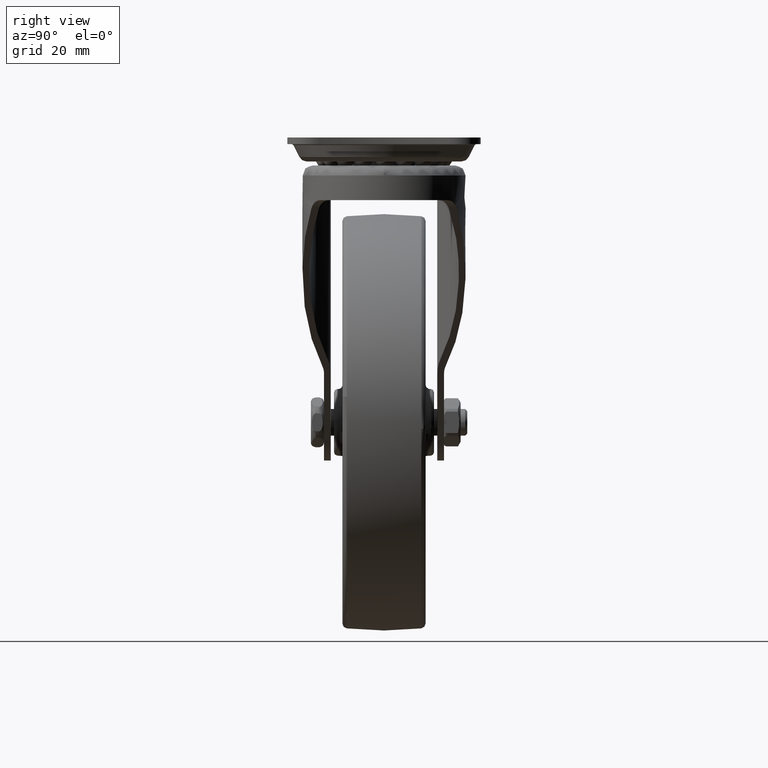
[diagram: clean part render]
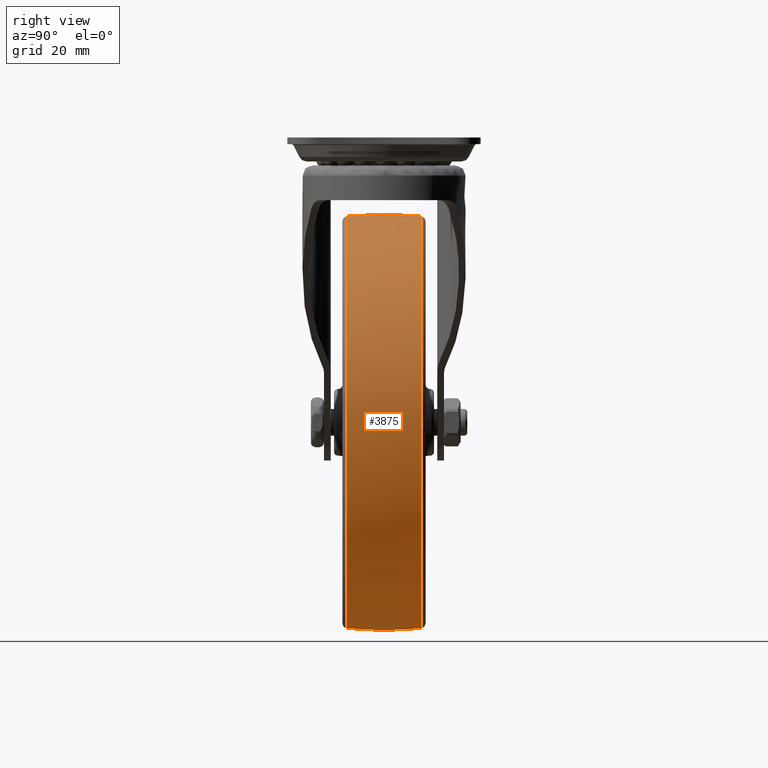
[diagram: same view with one face highlighted and labeled with its STEP entity id]
A machine part, right view. The second image highlights one B-rep face of the part: STEP entity #3875.
In plain terms, the highlighted face is a freeform B-spline surface patch.
Its self-contained STEP definition (entity closure, byte-faithful):
#2860=CARTESIAN_POINT('',(22.845244011217819,11.167496227775541,-85.401788313178116));
#2861=VERTEX_POINT('',#2860);
#2875=CARTESIAN_POINT('',(-39.0,11.167479376598530,-145.374480649571890));
#2876=VERTEX_POINT('',#2875);
#2877=CARTESIAN_POINT('',(22.845244011217826,11.167496227775539,-85.401788313178116));
#2878=CARTESIAN_POINT('',(21.001039585263349,11.167479729732420,-145.374480662721420));
#2879=CARTESIAN_POINT('',(-39.0,11.167479376598530,-145.374480649571890));
#2887=(BOUNDED_CURVE()B_SPLINE_CURVE(2,(#2877,#2878,#2879),.UNSPECIFIED.,.F.,.U.)B_SPLINE_CURVE_WITH_KNOTS((3,3),(0.255400342949292,0.500000000000000),.UNSPECIFIED.)CURVE()GEOMETRIC_REPRESENTATION_ITEM()RATIONAL_B_SPLINE_CURVE((0.987619548603187,0.713433676503007,1.0))REPRESENTATION_ITEM(''));
#2888=EDGE_CURVE('',#2861,#2876,#2887,.T.);
#2890=CARTESIAN_POINT('',(-100.460647095803400,11.167501089711850,-90.644222299101187));
#2891=VERTEX_POINT('',#2890);
#2905=CARTESIAN_POINT('',(-100.635247150040800,11.167502255783029,-78.064253065922173));
#2906=VERTEX_POINT('',#2905);
#2907=CARTESIAN_POINT('',(-100.460647095803410,11.167501089711847,-90.644222299101187));
#2908=CARTESIAN_POINT('',(-100.874478167351710,11.167501388904286,-87.084096863302136));
#2909=CARTESIAN_POINT('',(-100.874478129847900,11.167501724889570,-83.500000142278608));
#2910=CARTESIAN_POINT('',(-100.874478101353200,11.167501980165680,-80.776862246566225));
#2911=CARTESIAN_POINT('',(-100.635247150040750,11.167502255783031,-78.064253065922173));
#2919=(BOUNDED_CURVE()B_SPLINE_CURVE(2,(#2907,#2908,#2909,#2910,#2911),.UNSPECIFIED.,.F.,.U.)B_SPLINE_CURVE_WITH_KNOTS((3,2,3),(0.730000183416617,0.750000000000000,0.765281545798919),.UNSPECIFIED.)CURVE()GEOMETRIC_REPRESENTATION_ITEM()RATIONAL_B_SPLINE_CURVE((0.956886479199343,0.976568757380857,1.0,0.982096555450038,0.966381849362865))REPRESENTATION_ITEM(''));
#2920=EDGE_CURVE('',#2891,#2906,#2919,.T.);
#3009=CARTESIAN_POINT('',(-39.0,11.167512690355260,-21.625523094152800));
#3010=VERTEX_POINT('',#3009);
#3011=CARTESIAN_POINT('',(-100.635247150040750,11.167502255783024,-78.064253065922173));
#3012=CARTESIAN_POINT('',(-95.657791549611005,11.167507960688637,-21.625523155520952));
#3013=CARTESIAN_POINT('',(-39.0,11.167512690355260,-21.625523094152800));
#3021=(BOUNDED_CURVE()B_SPLINE_CURVE(2,(#3011,#3012,#3013),.UNSPECIFIED.,.F.,.U.)B_SPLINE_CURVE_WITH_KNOTS((3,3),(0.765281545798919,1.0),.UNSPECIFIED.)CURVE()GEOMETRIC_REPRESENTATION_ITEM()RATIONAL_B_SPLINE_CURVE((0.966381849362864,0.725010225736510,1.0))REPRESENTATION_ITEM(''));
#3022=EDGE_CURVE('',#2906,#3010,#3021,.T.);
#3024=CARTESIAN_POINT('',(-39.0,11.167512690355260,-21.625523094152800));
#3025=CARTESIAN_POINT('',(22.874477320516988,11.167513032796952,-21.625523106904289));
#3026=CARTESIAN_POINT('',(22.874477748134218,11.167496729052500,-83.500001897763440));
#3027=CARTESIAN_POINT('',(22.874477754707428,11.167496478435709,-84.451119792162103));
#3028=CARTESIAN_POINT('',(22.845244011217826,11.167496227775539,-85.401788313178116));
#3036=(BOUNDED_CURVE()B_SPLINE_CURVE(2,(#3024,#3025,#3026,#3027,#3028),.UNSPECIFIED.,.F.,.U.)B_SPLINE_CURVE_WITH_KNOTS((3,2,3),(0.0,0.250000000000000,0.255400342949292),.UNSPECIFIED.)CURVE()GEOMETRIC_REPRESENTATION_ITEM()RATIONAL_B_SPLINE_CURVE((1.0,0.707106781186548,1.0,0.993673104683541,0.987619548603187))REPRESENTATION_ITEM(''));
#3037=EDGE_CURVE('',#3010,#2861,#3036,.T.);
#3078=CARTESIAN_POINT('',(-17.089903320957180,-11.167497128498550,-141.365350299477710));
#3079=VERTEX_POINT('',#3078);
#3080=CARTESIAN_POINT('',(-39.0,-11.167496600321741,-145.374478714011590));
#3081=VERTEX_POINT('',#3080);
#3082=CARTESIAN_POINT('',(-17.089903320957180,-11.167497128498553,-141.365350299477710));
#3083=CARTESIAN_POINT('',(-27.678154781166203,-11.167496600321741,-145.374478714011590));
#3084=CARTESIAN_POINT('',(-39.0,-11.167496600321741,-145.374478714011590));
#3092=(BOUNDED_CURVE()B_SPLINE_CURVE(2,(#3082,#3083,#3084),.UNSPECIFIED.,.F.,.U.)B_SPLINE_CURVE_WITH_KNOTS((3,3),(0.439864364802635,0.500000000000000),.UNSPECIFIED.)CURVE()GEOMETRIC_REPRESENTATION_ITEM()RATIONAL_B_SPLINE_CURVE((0.892987463424499,0.929546720966609,1.0))REPRESENTATION_ITEM(''));
#3093=EDGE_CURVE('',#3079,#3081,#3092,.T.);
#3157=CARTESIAN_POINT('',(22.386578507134889,-11.167505699743669,-75.745071649993506));
#3158=VERTEX_POINT('',#3157);
#3172=CARTESIAN_POINT('',(-39.0,-11.167512690355361,-21.625523094152800));
#3173=VERTEX_POINT('',#3172);
#3174=CARTESIAN_POINT('',(-39.0,-11.167512690355361,-21.625523094152800));
#3175=CARTESIAN_POINT('',(15.549688461256952,-11.167512690355361,-21.625523094152811));
#3176=CARTESIAN_POINT('',(22.386578507134892,-11.167505699743666,-75.745071649993506));
#3184=(BOUNDED_CURVE()B_SPLINE_CURVE(2,(#3174,#3175,#3176),.UNSPECIFIED.,.F.,.U.)B_SPLINE_CURVE_WITH_KNOTS((3,3),(0.0,0.228321254115601),.UNSPECIFIED.)CURVE()GEOMETRIC_REPRESENTATION_ITEM()RATIONAL_B_SPLINE_CURVE((1.0,0.732505011834229,0.953608353009632))REPRESENTATION_ITEM(''));
#3185=EDGE_CURVE('',#3173,#3158,#3184,.T.);
#3187=CARTESIAN_POINT('',(-100.460645261107300,-11.167517428462061,-90.644222180527947));
#3188=VERTEX_POINT('',#3187);
#3189=CARTESIAN_POINT('',(-100.460645261107270,-11.167517428462068,-90.644222180527947));
#3190=CARTESIAN_POINT('',(-100.874476390554560,-11.167517306261448,-87.084096703953776));
#3191=CARTESIAN_POINT('',(-100.874476405873910,-11.167517169033360,-83.499999941882805));
#3192=CARTESIAN_POINT('',(-100.874476670341110,-11.167514799980008,-21.625523066777436));
#3193=CARTESIAN_POINT('',(-39.0,-11.167512690355361,-21.625523094152800));
#3201=(BOUNDED_CURVE()B_SPLINE_CURVE(2,(#3189,#3190,#3191,#3192,#3193),.UNSPECIFIED.,.F.,.U.)B_SPLINE_CURVE_WITH_KNOTS((3,2,3),(0.730000183159472,0.750000000000000,1.0),.UNSPECIFIED.)CURVE()GEOMETRIC_REPRESENTATION_ITEM()RATIONAL_B_SPLINE_CURVE((0.956886478693219,0.976568757079593,1.0,0.707106781186548,1.0))REPRESENTATION_ITEM(''));
#3202=EDGE_CURVE('',#3188,#3173,#3201,.T.);
#3237=CARTESIAN_POINT('',(22.386578507134896,-11.167505699743669,-75.745071649993506));
#3238=CARTESIAN_POINT('',(22.874476905847203,-11.167505151488170,-79.607188285257237));
#3239=CARTESIAN_POINT('',(22.874476905847200,-11.167504645338550,-83.500000904082199));
#3240=CARTESIAN_POINT('',(22.874476905847203,-11.167499089092557,-126.233263952785830));
#3241=CARTESIAN_POINT('',(-17.089903320957184,-11.167497128498551,-141.365350299477740));
#3249=(BOUNDED_CURVE()B_SPLINE_CURVE(2,(#3237,#3238,#3239,#3240,#3241),.UNSPECIFIED.,.F.,.U.)B_SPLINE_CURVE_WITH_KNOTS((3,2,3),(0.228321254115601,0.250000000000000,0.439864364802635),.UNSPECIFIED.)CURVE()GEOMETRIC_REPRESENTATION_ITEM()RATIONAL_B_SPLINE_CURVE((0.953608353009632,0.974601769352318,1.0,0.777560060219939,0.892987463424499))REPRESENTATION_ITEM(''));
#3250=EDGE_CURVE('',#3158,#3079,#3249,.T.);
#3782=CARTESIAN_POINT('',(-100.328220371281900,12.295962269001576,-90.628894801781371));
#3783=CARTESIAN_POINT('',(-101.081977602067750,6.171396417675259,-90.716512801648705));
#3784=CARTESIAN_POINT('',(-101.081977602067770,-8.449784E-015,-90.716512801648705));
#3785=CARTESIAN_POINT('',(-101.081977602067750,-6.171396417675268,-90.716512801648705));
#3786=CARTESIAN_POINT('',(-100.328220371281920,-12.295962269001574,-90.628894801781357));
#3787=CARTESIAN_POINT('',(-100.741167425012140,12.295962269001571,-87.076407548566166));
#3788=CARTESIAN_POINT('',(-101.499999999999990,6.171396417675259,-87.120363545228855));
#3789=CARTESIAN_POINT('',(-101.500000000000010,-8.449784E-015,-87.120363545228841));
#3790=CARTESIAN_POINT('',(-101.499999999999990,-6.171396417675267,-87.120363545228841));
#3791=CARTESIAN_POINT('',(-100.741167425012140,-12.295962269001581,-87.076407548566138));
#3792=CARTESIAN_POINT('',(-100.741167425012120,12.295962269001569,-83.500000000000000));
#3793=CARTESIAN_POINT('',(-101.500000000000000,6.171396417675260,-83.500000000000000));
#3794=CARTESIAN_POINT('',(-101.500000000000000,-8.449784E-015,-83.500000000000000));
#3795=CARTESIAN_POINT('',(-101.500000000000000,-6.171396417675268,-83.500000000000000));
#3796=CARTESIAN_POINT('',(-100.741167425012120,-12.295962269001569,-83.500000000000000));
#3797=CARTESIAN_POINT('',(-100.741167425012150,12.295962269001572,-21.758832574987853));
#3798=CARTESIAN_POINT('',(-101.500000000000030,6.171396417675259,-20.999999999999986));
#3799=CARTESIAN_POINT('',(-101.500000000000010,-8.449784E-015,-20.999999999999986));
#3800=CARTESIAN_POINT('',(-101.500000000000030,-6.171396417675268,-20.999999999999986));
#3801=CARTESIAN_POINT('',(-100.741167425012150,-12.295962269001574,-21.758832574987853));
#3802=CARTESIAN_POINT('',(-39.0,12.295962269001569,-21.758832574987856));
#3803=CARTESIAN_POINT('',(-39.0,6.171396417675260,-20.999999999999989));
#3804=CARTESIAN_POINT('',(-39.0,-8.449784E-015,-20.999999999999989));
#3805=CARTESIAN_POINT('',(-39.0,-6.171396417675268,-20.999999999999989));
#3806=CARTESIAN_POINT('',(-39.0,-12.295962269001569,-21.758832574987856));
#3807=CARTESIAN_POINT('',(22.741167425012137,12.295962269001572,-21.758832574987853));
#3808=CARTESIAN_POINT('',(23.500000000000011,6.171396417675259,-20.999999999999986));
#3809=CARTESIAN_POINT('',(23.500000000000004,-8.449784E-015,-20.999999999999986));
#3810=CARTESIAN_POINT('',(23.500000000000011,-6.171396417675268,-20.999999999999986));
#3811=CARTESIAN_POINT('',(22.741167425012154,-12.295962269001574,-21.758832574987853));
#3812=CARTESIAN_POINT('',(22.741167425012151,12.295962269001569,-83.500000000000000));
#3813=CARTESIAN_POINT('',(23.500000000000018,6.171396417675260,-83.500000000000000));
#3814=CARTESIAN_POINT('',(23.500000000000011,-8.449784E-015,-83.500000000000000));
#3815=CARTESIAN_POINT('',(23.500000000000018,-6.171396417675268,-83.500000000000000));
#3816=CARTESIAN_POINT('',(22.741167425012158,-12.295962269001569,-83.500000000000000));
#3817=CARTESIAN_POINT('',(22.741167425012137,12.295962269001572,-145.241167425012120));
#3818=CARTESIAN_POINT('',(23.500000000000011,6.171396417675259,-146.000000000000030));
#3819=CARTESIAN_POINT('',(23.500000000000004,-8.449784E-015,-146.000000000000090));
#3820=CARTESIAN_POINT('',(23.500000000000011,-6.171396417675268,-146.000000000000030));
#3821=CARTESIAN_POINT('',(22.741167425012154,-12.295962269001574,-145.241167425012150));
#3822=CARTESIAN_POINT('',(-39.0,12.295962269001569,-145.241167425012150));
#3823=CARTESIAN_POINT('',(-39.0,6.171396417675260,-146.0));
#3824=CARTESIAN_POINT('',(-39.0,-8.449784E-015,-146.0));
#3825=CARTESIAN_POINT('',(-39.0,-6.171396417675268,-146.0));
#3826=CARTESIAN_POINT('',(-39.0,-12.295962269001569,-145.241167425012150));
#3834=(BOUNDED_SURFACE()B_SPLINE_SURFACE(2,2,((#3782,#3787,#3792,#3797,#3802,#3807,#3812,#3817,#3822),(#3783,#3788,#3793,#3798,#3803,#3808,#3813,#3818,#3823),(#3784,#3789,#3794,#3799,#3804,#3809,#3814,#3819,#3824),(#3785,#3790,#3795,#3800,#3805,#3810,#3815,#3820,#3825),(#3786,#3791,#3796,#3801,#3806,#3811,#3816,#3821,#3826)),.UNSPECIFIED.,.F.,.F.,.U.)B_SPLINE_SURFACE_WITH_KNOTS((3,2,3),(3,2,2,2,3),(0.0,12.527872647056061,25.055745294112111),(0.0,8.284269519228245,111.837660112501990,215.391050705775800,318.944441299049570),.UNSPECIFIED.)GEOMETRIC_REPRESENTATION_ITEM()RATIONAL_B_SPLINE_SURFACE(((0.925297864220014,0.944330538634696,0.966988483466114,0.683764113988185,0.966988483466114,0.683764113988185,0.966988483466114,0.683764113988185,0.966988483466114),(0.939172678191685,0.958490746993513,0.981488447034224,0.694017136554153,0.981488447034224,0.694017136554153,0.981488447034224,0.694017136554153,0.981488447034224),(0.956886126402807,0.976568547383107,1.0,0.707106781186548,1.0,0.707106781186548,1.0,0.707106781186548,1.0),(0.939172678191685,0.958490746993513,0.981488447034224,0.694017136554153,0.981488447034224,0.694017136554153,0.981488447034224,0.694017136554153,0.981488447034224),(0.925297864220014,0.944330538634696,0.966988483466114,0.683764113988185,0.966988483466114,0.683764113988185,0.966988483466114,0.683764113988185,0.966988483466114)))REPRESENTATION_ITEM('')SURFACE());
#3835=ORIENTED_EDGE('',*,*,#3022,.F.);
#3836=ORIENTED_EDGE('',*,*,#2920,.F.);
#3837=CARTESIAN_POINT('',(-100.460647095803410,11.167501089711843,-90.644222299101202));
#3838=CARTESIAN_POINT('',(-101.081985167910700,5.601269124314364,-90.716447713852986));
#3839=CARTESIAN_POINT('',(-101.081985165187180,-5.108832E-014,-90.716447737284383));
#3840=CARTESIAN_POINT('',(-101.081985162463670,-5.601277370904628,-90.716447760715837));
#3841=CARTESIAN_POINT('',(-100.460645261107270,-11.167517428462062,-90.644222180527947));
#3849=(BOUNDED_CURVE()B_SPLINE_CURVE(2,(#3837,#3838,#3839,#3840,#3841),.UNSPECIFIED.,.F.,.U.)B_SPLINE_CURVE_WITH_KNOTS((3,2,3),(0.450743906543254,0.500000000000000,0.549256164754600),.UNSPECIFIED.)CURVE()GEOMETRIC_REPRESENTATION_ITEM()RATIONAL_B_SPLINE_CURVE((0.927849950295798,0.940781536701395,0.956886118190660,0.940781513390125,0.927849912859041))REPRESENTATION_ITEM(''));
#3850=EDGE_CURVE('',#2891,#3188,#3849,.T.);
#3851=ORIENTED_EDGE('',*,*,#3850,.T.);
#3852=ORIENTED_EDGE('',*,*,#3202,.T.);
#3853=ORIENTED_EDGE('',*,*,#3185,.T.);
#3854=ORIENTED_EDGE('',*,*,#3250,.T.);
#3855=ORIENTED_EDGE('',*,*,#3093,.T.);
#3856=CARTESIAN_POINT('',(-38.999999999999993,11.167479376598521,-145.374480649571860));
#3857=CARTESIAN_POINT('',(-39.0,5.601258165144626,-146.000000000000030));
#3858=CARTESIAN_POINT('',(-39.0,-8.449784E-015,-146.0));
#3859=CARTESIAN_POINT('',(-38.999999999999993,-5.601266858403069,-146.000000000000030));
#3860=CARTESIAN_POINT('',(-39.0,-11.167496600321741,-145.374478714011640));
#3868=(BOUNDED_CURVE()B_SPLINE_CURVE(2,(#3856,#3857,#3858,#3859,#3860),.UNSPECIFIED.,.F.,.U.)B_SPLINE_CURVE_WITH_KNOTS((3,2,3),(0.450744001293400,0.500000000000000,0.549256073866235),.UNSPECIFIED.)CURVE()GEOMETRIC_REPRESENTATION_ITEM()RATIONAL_B_SPLINE_CURVE((0.969655617746066,0.983169835778811,1.0,0.983169810097696,0.969655576503434))REPRESENTATION_ITEM(''));
#3869=EDGE_CURVE('',#2876,#3081,#3868,.T.);
#3870=ORIENTED_EDGE('',*,*,#3869,.F.);
#3871=ORIENTED_EDGE('',*,*,#2888,.F.);
#3872=ORIENTED_EDGE('',*,*,#3037,.F.);
#3873=EDGE_LOOP('',(#3835,#3836,#3851,#3852,#3853,#3854,#3855,#3870,#3871,#3872));
#3874=FACE_OUTER_BOUND('',#3873,.T.);
#3875=ADVANCED_FACE('',(#3874),#3834,.T.);